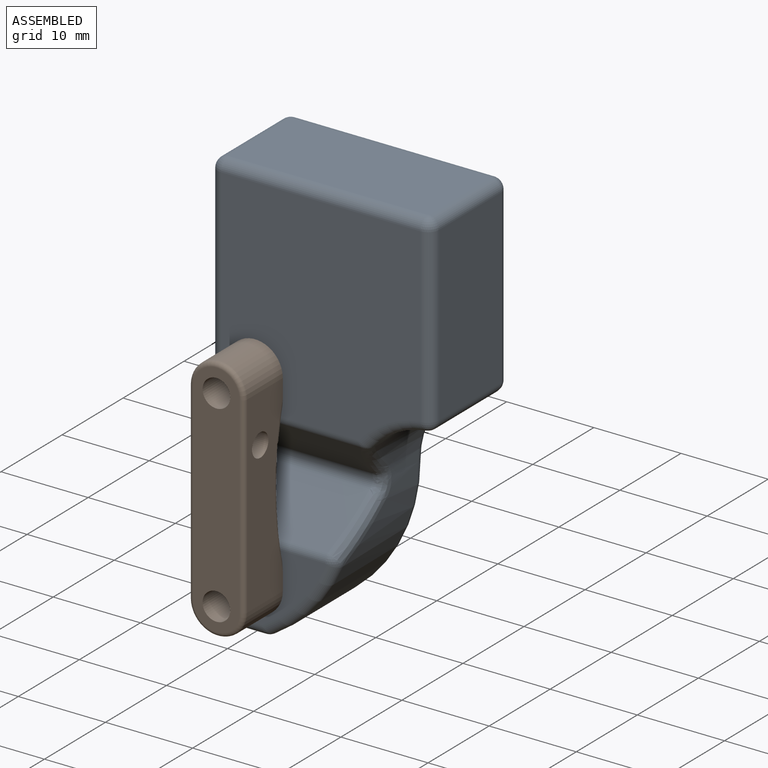
[diagram: assembled view]
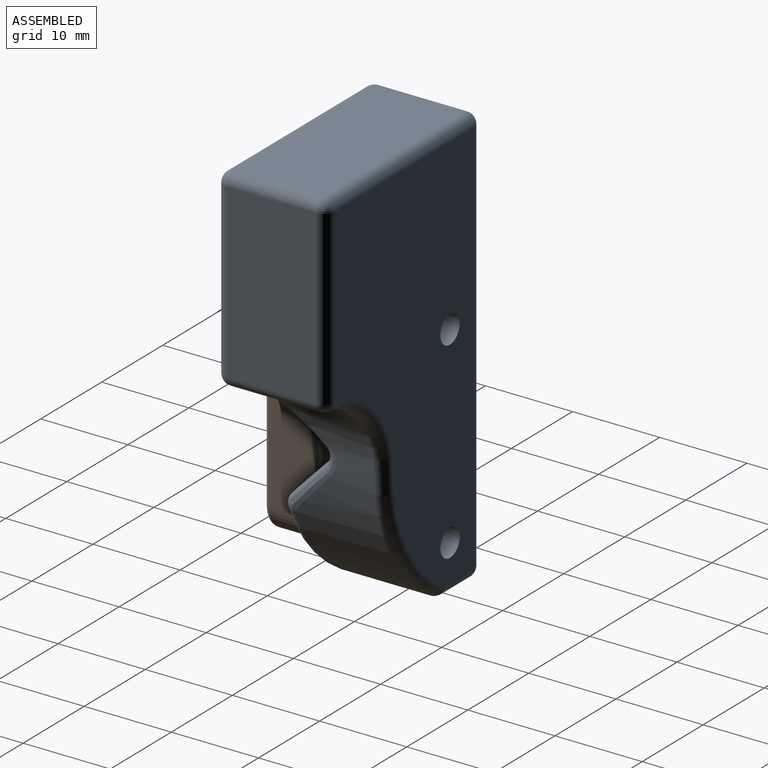
[diagram: assembled view, second angle]
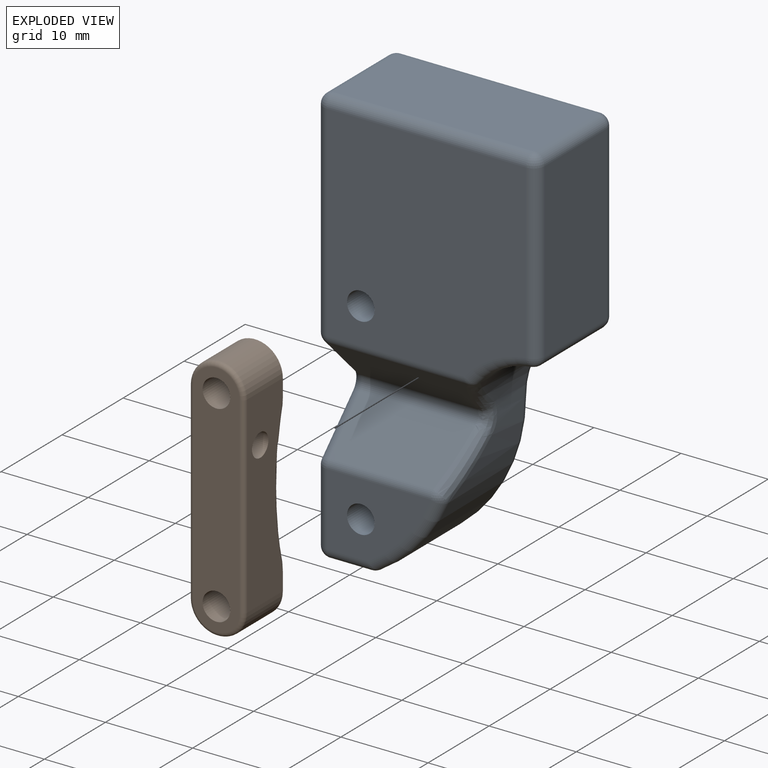
[diagram: exploded view]
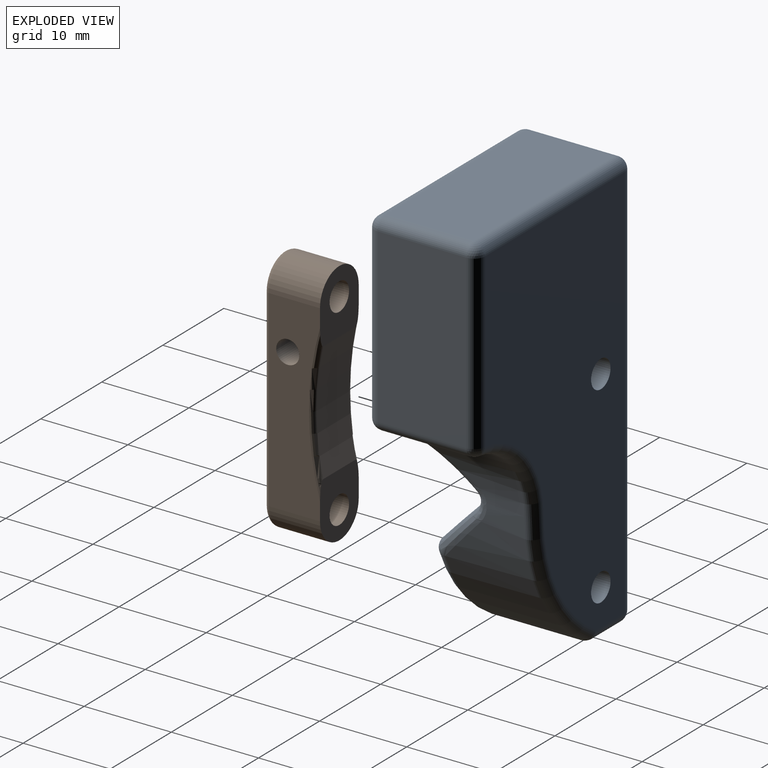
[diagram: exploded view, second angle]
ASSEMBLY  parts=2 mates=3
PART A: 55 faces, bbox 25.4x15.6x49.4 mm
  f0: plane 45.71x22.86mm, normal (0,1,0), area 767.8mm2, adj f12,f14,f15,f16,f24,f25,f53,f54
  f1: cylinder r=9.53mm len=10.16mm, axis (0,1,0), area 119.3mm2, adj f8,f16,f28,f39,f40,f41
  f2: plane 23.6x22.86mm, normal (0,-1,0), area 513.9mm2, adj f27,f38,f39,f48,f49,f54
  f3: plane 19.76x10.16mm, normal (1,0,0), area 200.8mm2, adj f15,f26,f27,f28
  f4: plane 11.95x8.35mm, normal (0,-1,0), area 68.3mm2, adj f21,f22,f35,f36,f53
  f5: plane 22.86x10.16mm, normal (0,0,1), area 232.3mm2, adj f25,f26,f37,f38
  f6: plane 45.71x10.16mm, normal (-1,0,0), area 418.5mm2, adj f23,f24,f36,f37,f47,f48,f50,f52
  f7: plane 10.16x4.73mm, normal (0,0,-1), area 48.1mm2, adj f13,f14,f22,f23
  f8: cylinder r=19.05mm len=16.32mm, axis (0,-1,0), area 174.2mm2, adj f1,f12,f13,f21,f34,f42
  f9: plane 15.81x5.08mm, normal (0,-0.71,-0.71), area 103.3mm2, adj f40,f46,f49,f52
  f10: plane 13.24x5.08mm, normal (0,-0.71,0.71), area 91.5mm2, adj f34,f35,f46,f47
  f11: sphere r=1.27mm, area 0.9mm2, adj f12,f13,f14
  f12: torus R=17.78mm, axis (0,-1,0), area 38.1mm2, adj f0,f8,f11,f16
  f13: cylinder r=1.27mm len=10.16mm, axis (0,-1,0), area 7mm2, adj f7,f8,f11,f17
  f14: cylinder r=1.27mm len=4.73mm, axis (-1,0,0), area 9.4mm2, adj f0,f7,f11,f18
  f15: cylinder r=1.27mm len=19.76mm, axis (0,0,1), area 39.4mm2, adj f0,f3,f19,f20
  f16: torus R=10.79mm, axis (0,-1,0), area 28.9mm2, adj f0,f1,f12,f20
  f17: sphere r=1.27mm, area 0.9mm2, adj f13,f21,f22
  f18: sphere r=1.27mm, area 2.5mm2, adj f14,f23,f24
  f19: sphere r=1.27mm, area 2.5mm2, adj f15,f25,f26
  f20: sphere r=1.27mm, area 2.3mm2, adj f15,f16,f28
  f21: torus R=17.78mm, axis (0,-1,0), area 23.4mm2, adj f4,f8,f17,f29
  f22: cylinder r=1.27mm len=4.73mm, axis (1,0,0), area 9.4mm2, adj f4,f7,f17,f30
  f23: cylinder r=1.27mm len=10.16mm, axis (0,-1,0), area 20.3mm2, adj f6,f7,f18,f30
  f24: cylinder r=1.27mm len=45.71mm, axis (0,0,1), area 91.2mm2, adj f0,f6,f18,f31
  f25: cylinder r=1.27mm len=22.86mm, axis (1,0,0), area 45.6mm2, adj f0,f5,f19,f31
  f26: cylinder r=1.27mm len=10.16mm, axis (0,1,0), area 20.3mm2, adj f3,f5,f19,f32
  f27: cylinder r=1.27mm len=19.76mm, axis (0,0,-1), area 39.4mm2, adj f2,f3,f32,f33
  f28: cylinder r=1.27mm len=10.16mm, axis (0,1,0), area 18.7mm2, adj f1,f3,f20,f33
  f29: sphere r=1.27mm, area 1.4mm2, adj f21,f34,f35
  f30: sphere r=1.27mm, area 2.5mm2, adj f22,f23,f36
  f31: sphere r=1.27mm, area 2.5mm2, adj f24,f25,f37
  f32: sphere r=1.27mm, area 2.5mm2, adj f26,f27,f38
  f33: sphere r=1.27mm, area 2.3mm2, adj f27,f28,f39
  f34: bspline ~11.95x11.77mm, area 16.6mm2, adj f8,f10,f29,f42
  f35: cylinder r=1.27mm len=11.95mm, axis (1,0,0), area 11.9mm2, adj f4,f10,f29,f43
  f36: cylinder r=1.27mm len=8.35mm, axis (0,0,-1), area 16.7mm2, adj f4,f6,f30,f43
  f37: cylinder r=1.27mm len=10.16mm, axis (0,1,0), area 20.3mm2, adj f5,f6,f31,f44
  f38: cylinder r=1.27mm len=22.86mm, axis (-1,0,0), area 45.6mm2, adj f2,f5,f32,f44
  f39: torus R=10.79mm, axis (0,-1,0), area 15.2mm2, adj f1,f2,f33,f45
  f40: bspline ~5.98x5.17mm, area 11.9mm2, adj f1,f9,f41,f45
  f41: bspline ~2.15x1.87mm, area 2.4mm2, adj f1,f40,f42,f46
  f42: bspline ~2.62x1.95mm, area 2.9mm2, adj f8,f34,f41,f46
  f43: sphere r=1.27mm, area 1.3mm2, adj f35,f36,f47
  f44: sphere r=1.27mm, area 2.5mm2, adj f37,f38,f48
  f45: sphere r=1.27mm, area 0.8mm2, adj f39,f40,f49
  f46: cylinder r=1.27mm len=13.49mm, axis (-1,0,0), area 26.6mm2, adj f9,f10,f41,f42,f50
  f47: cylinder r=1.27mm len=5.98mm, axis (0,-0.71,-0.71), area 14.3mm2, adj f6,f10,f43,f50
  f48: cylinder r=1.27mm len=23.6mm, axis (0,0,-1), area 47.1mm2, adj f2,f6,f44,f51
  f49: cylinder r=1.27mm len=15.81mm, axis (-1,0,0), area 15.8mm2, adj f2,f9,f45,f51
  f50: torus R=2.54mm, axis (1,0,0), area 5.4mm2, adj f6,f46,f47,f52
  f51: sphere r=1.27mm, area 1.3mm2, adj f48,f49,f52
  f52: cylinder r=1.27mm len=5.98mm, axis (0,0.71,-0.71), area 14.3mm2, adj f6,f9,f50,f51
  f53: cylinder r=1.59mm len=12.7mm, axis (0,-1,0), area 126.7mm2, adj f0,f4
  f54: cylinder r=1.59mm len=12.7mm, axis (0,-1,0), area 126.7mm2, adj f0,f2
PART B: 17 faces, bbox 6.9x6.8x29 mm
  f0: plane 22.1x5.84mm, normal (-1,0,0), area 108.6mm2, adj f1,f3,f4,f8,f10,f15,f16
  f1: plane 7.35x6.35mm, normal (0,1,0), area 33.9mm2, adj f0,f2,f3,f6,f9,f14,f15
  f2: plane 22.1x5.84mm, normal (1,0,0), area 108.6mm2, adj f1,f3,f4,f8,f13,f14,f16
  f3: cylinder r=3.17mm len=6.35mm, axis (0,1,0), area 58.3mm2, adj f0,f1,f2,f11
  f4: cylinder r=3.17mm len=6.35mm, axis (0,1,0), area 58.3mm2, adj f0,f2,f8,f12
  f5: cylinder r=1.59mm len=6.35mm, axis (0,1,0), area 63.3mm2, adj f7,f8
  f6: cylinder r=1.59mm len=6.35mm, axis (0,1,0), area 63.3mm2, adj f1,f7
  f7: plane 27.44x5.33mm, normal (0,-1,0), area 124.4mm2, adj f5,f6,f10,f11,f12,f13
  f8: plane 7.35x6.35mm, normal (0,1,0), area 33.9mm2, adj f0,f2,f4,f5,f9,f14,f15
  f9: cylinder r=32.49mm len=13.75mm, axis (-1,0,0), area 73.9mm2, adj f1,f8,f14,f15
  f10: cylinder r=0.51mm len=22.1mm, axis (0,0,1), area 17.6mm2, adj f0,f7,f11,f12
  f11: torus R=2.67mm, axis (0,-1,0), area 7.5mm2, adj f3,f7,f10,f13
  f12: torus R=2.67mm, axis (0,-1,0), area 7.5mm2, adj f4,f7,f10,f13
  f13: cylinder r=0.51mm len=22.1mm, axis (0,0,-1), area 17.6mm2, adj f2,f7,f11,f12
  f14: torus R=32.99mm, axis (1,0,0), area 12.4mm2, adj f1,f2,f8,f9
  f15: torus R=32.99mm, axis (1,0,0), area 12.4mm2, adj f0,f1,f8,f9
  f16: cylinder r=1.33mm len=6.35mm, axis (1,0,0), area 53mm2, adj f0,f2
PLACE A rot(axis=(0,1,0),0deg) t=(-8.26,-4.96,0.37)mm
PLACE B t=(-8.26,-4.96,0.37)mm
MATE cylindrical B.f3 <-> A.f54  axis (0,-1,0) through (-28.47,-23.5,11.42)mm
MATE planar A.f2 <-> B.f1  axis (0,-1,0) through (-32.39,-17.66,19.05)mm
MATE cylindrical B.f4 <-> A.f53  axis (0,-1,0) through (-28.47,-24.01,-10.68)mm
